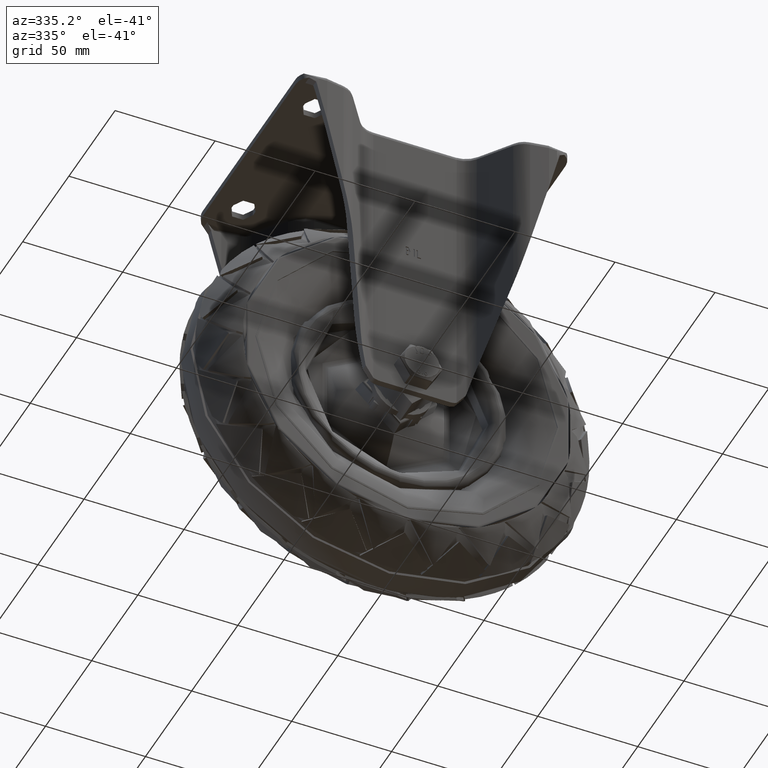
[diagram: clean part render]
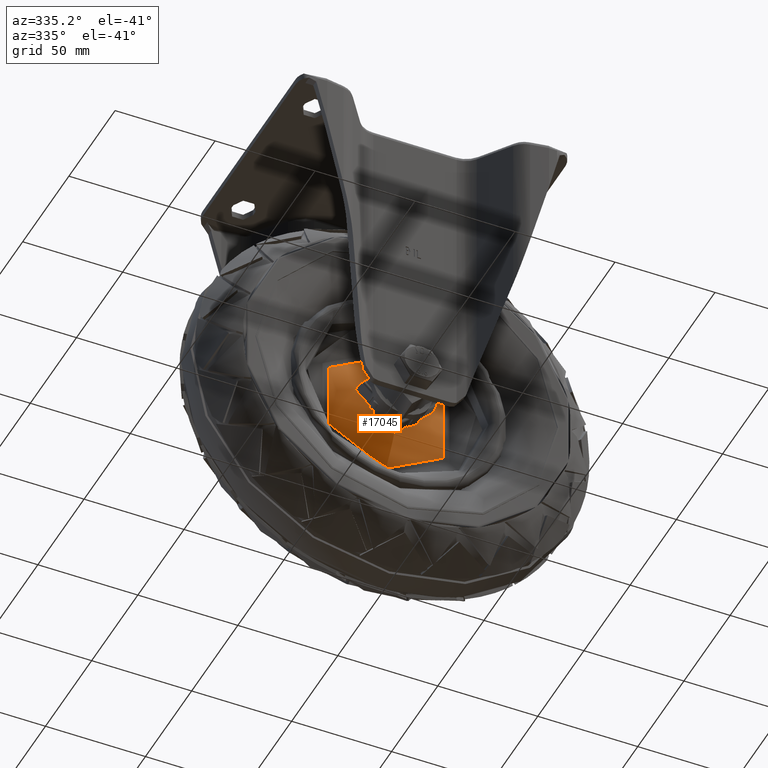
[diagram: same view with one face highlighted and labeled with its STEP entity id]
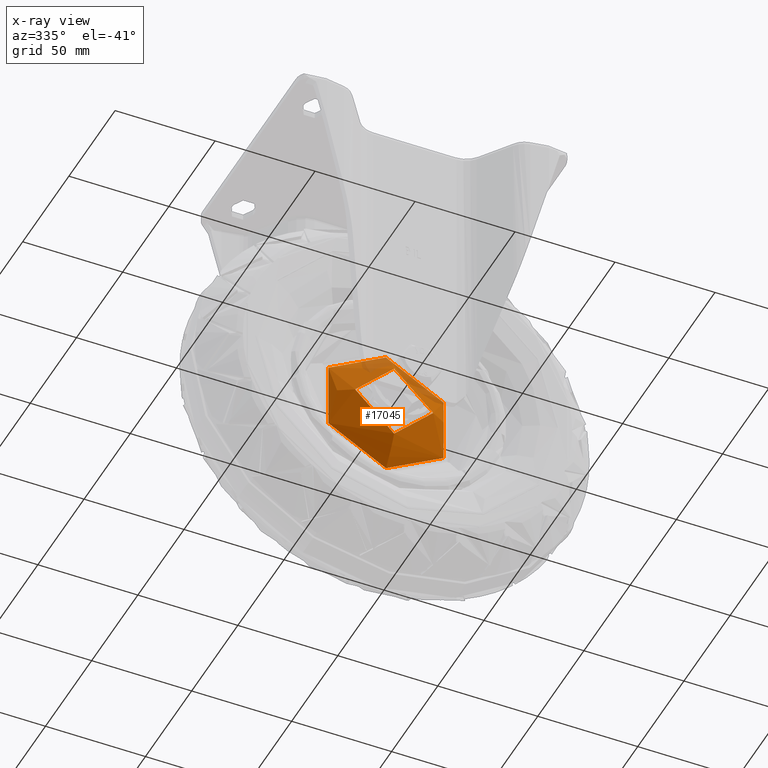
[diagram: x-ray of the same camera — body ghosted, the highlighted face saturated]
A machine part, auxiliary view. The second image highlights one B-rep face of the part: STEP entity #17045.
The next image is the same camera in x-ray: the body ghosted, the highlighted face saturated — about 9% of this face is hidden behind the body in this view.
In plain terms, the highlighted face is a freeform B-spline surface patch.
Its self-contained STEP definition (entity closure, byte-faithful):
#111=(
BOUNDED_SURFACE()
B_SPLINE_SURFACE(2,2,((#25101,#25102,#25103,#25104,#25105,#25106,#25107,
#25108,#25109),(#25110,#25111,#25112,#25113,#25114,#25115,#25116,#25117,
#25118),(#25119,#25120,#25121,#25122,#25123,#25124,#25125,#25126,#25127)),
 .UNSPECIFIED.,.F.,.T.,.F.)
B_SPLINE_SURFACE_WITH_KNOTS((3,3),(3,2,2,2,3),(-1.12169324649233,-0.873469968062793),
(-3.14159265358979,-1.5707963267949,0.,1.5707963267949,3.14159265358979),
 .UNSPECIFIED.)
GEOMETRIC_REPRESENTATION_ITEM()
RATIONAL_B_SPLINE_SURFACE(((1.,0.707106781186548,1.,0.707106781186548,1.,
0.707106781186548,1.,0.707106781186548,1.),(0.992308031845154,0.701667738343585,
0.992308031845154,0.701667738343585,0.992308031845154,0.701667738343585,
0.992308031845154,0.701667738343585,0.992308031845154),(1.,0.707106781186548,
1.,0.707106781186548,1.,0.707106781186548,1.,0.707106781186548,1.)))
REPRESENTATION_ITEM('')
SURFACE()
);
#1338=FACE_OUTER_BOUND('',#2387,.T.);
#2387=EDGE_LOOP('',(#12311,#12312,#12313,#12314));
#3439=CIRCLE('',#18398,19.5000000000147);
#3470=CIRCLE('',#18445,33.3128887716657);
#3471=CIRCLE('',#18446,66.4040508978264);
#7244=VERTEX_POINT('',#24951);
#7268=VERTEX_POINT('',#25098);
#9126=EDGE_CURVE('',#7244,#7244,#3439,.T.);
#9167=EDGE_CURVE('',#7268,#7268,#3470,.T.);
#9168=EDGE_CURVE('',#7268,#7244,#3471,.T.);
#12311=ORIENTED_EDGE('',*,*,#9167,.F.);
#12312=ORIENTED_EDGE('',*,*,#9168,.T.);
#12313=ORIENTED_EDGE('',*,*,#9126,.T.);
#12314=ORIENTED_EDGE('',*,*,#9168,.F.);
#17045=ADVANCED_FACE('',(#1338),#111,.F.);
#18398=AXIS2_PLACEMENT_3D('',#24952,#20466,#20467);
#18445=AXIS2_PLACEMENT_3D('',#25100,#20567,#20568);
#18446=AXIS2_PLACEMENT_3D('',#25128,#20569,#20570);
#20466=DIRECTION('center_axis',(0.,1.,-9.34208833488365E-17));
#20467=DIRECTION('ref_axis',(0.,9.34208833488365E-17,1.));
#20567=DIRECTION('center_axis',(0.,1.,-9.34208833488365E-17));
#20568=DIRECTION('ref_axis',(0.,9.34208833488365E-17,1.));
#20569=DIRECTION('center_axis',(-1.,1.14407585766671E-32,1.22464679914735E-16));
#20570=DIRECTION('ref_axis',(-1.22464679914735E-16,-1.55618147282283E-16,
-1.));
#24951=CARTESIAN_POINT('',(2.38806125833914E-15,-10.4999999998727,-19.5000000000147));
#24952=CARTESIAN_POINT('Origin',(0.,-10.4999999998727,1.12227992457626E-15));
#25098=CARTESIAN_POINT('',(-4.07965226045722E-15,-1.58359535363875,-33.3128887716657));
#25100=CARTESIAN_POINT('Origin',(0.,-1.58359535363875,2.8930152622942E-16));
#25101=CARTESIAN_POINT('Ctrl Pts',(0.,-10.4999999998727,-19.5000000000147));
#25102=CARTESIAN_POINT('Ctrl Pts',(-19.5000000000147,-10.4999999998727,
-19.5000000000147));
#25103=CARTESIAN_POINT('Ctrl Pts',(-19.5000000000147,-10.4999999998727,
3.84193695098636E-16));
#25104=CARTESIAN_POINT('Ctrl Pts',(-19.5000000000147,-10.4999999998727,
19.5000000000147));
#25105=CARTESIAN_POINT('Ctrl Pts',(0.,-10.4999999998727,19.5000000000147));
#25106=CARTESIAN_POINT('Ctrl Pts',(19.5000000000147,-10.4999999998727,19.5000000000147));
#25107=CARTESIAN_POINT('Ctrl Pts',(19.5000000000147,-10.4999999998727,3.84193695098636E-16));
#25108=CARTESIAN_POINT('Ctrl Pts',(19.5000000000147,-10.4999999998727,-19.5000000000147));
#25109=CARTESIAN_POINT('Ctrl Pts',(0.,-10.4999999998727,-19.5000000000147));
#25110=CARTESIAN_POINT('Ctrl Pts',(0.,-6.90339629555653,-26.96261783043));
#25111=CARTESIAN_POINT('Ctrl Pts',(-26.96261783043,-6.90339629555653,-26.96261783043));
#25112=CARTESIAN_POINT('Ctrl Pts',(-26.96261783043,-6.90339629555654,4.81957999857248E-17));
#25113=CARTESIAN_POINT('Ctrl Pts',(-26.96261783043,-6.90339629555654,26.96261783043));
#25114=CARTESIAN_POINT('Ctrl Pts',(0.,-6.90339629555654,26.96261783043));
#25115=CARTESIAN_POINT('Ctrl Pts',(26.96261783043,-6.90339629555654,26.96261783043));
#25116=CARTESIAN_POINT('Ctrl Pts',(26.96261783043,-6.90339629555654,4.81957999857248E-17));
#25117=CARTESIAN_POINT('Ctrl Pts',(26.96261783043,-6.90339629555653,-26.96261783043));
#25118=CARTESIAN_POINT('Ctrl Pts',(0.,-6.90339629555653,-26.96261783043));
#25119=CARTESIAN_POINT('Ctrl Pts',(0.,-1.58359535363872,-33.3128887716657));
#25120=CARTESIAN_POINT('Ctrl Pts',(-33.3128887716657,-1.58359535363872,
-33.3128887716657));
#25121=CARTESIAN_POINT('Ctrl Pts',(-33.3128887716657,-1.58359535363872,
-4.4878470324821E-16));
#25122=CARTESIAN_POINT('Ctrl Pts',(-33.3128887716657,-1.58359535363872,
33.3128887716657));
#25123=CARTESIAN_POINT('Ctrl Pts',(0.,-1.58359535363872,33.3128887716657));
#25124=CARTESIAN_POINT('Ctrl Pts',(33.3128887716657,-1.58359535363872,33.3128887716657));
#25125=CARTESIAN_POINT('Ctrl Pts',(33.3128887716657,-1.58359535363872,-4.4878470324821E-16));
#25126=CARTESIAN_POINT('Ctrl Pts',(33.3128887716657,-1.58359535363872,-33.3128887716657));
#25127=CARTESIAN_POINT('Ctrl Pts',(0.,-1.58359535363872,-33.3128887716657));
#25128=CARTESIAN_POINT('Origin',(1.14257489383657E-15,49.3192173175437,
9.32983203509836));